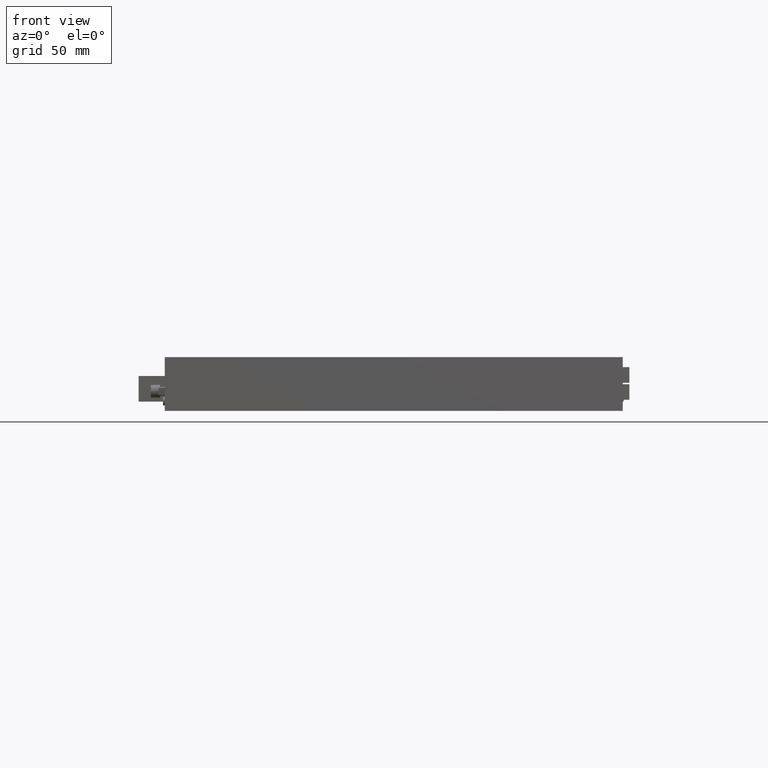
[diagram: clean part render]
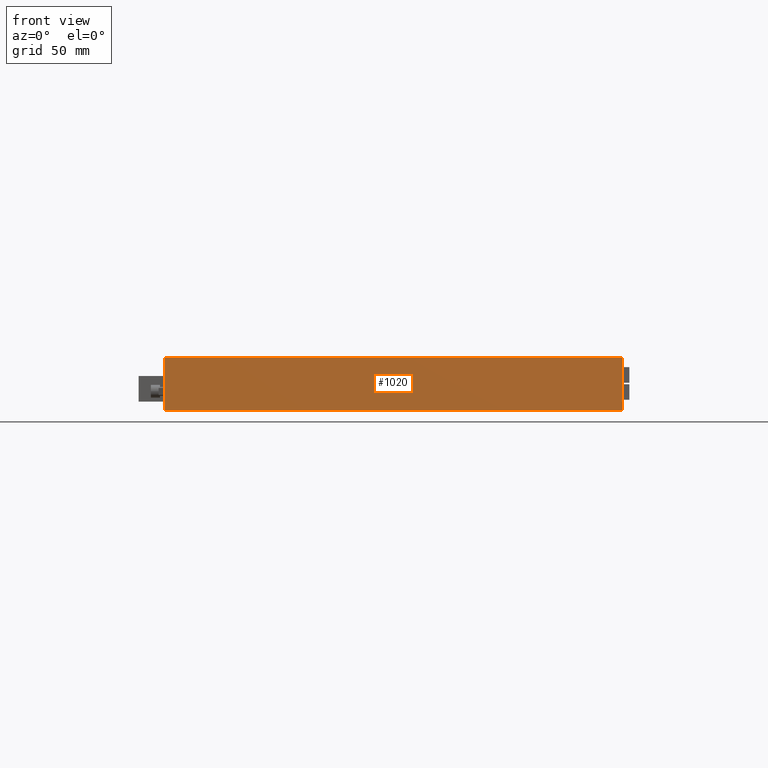
[diagram: same view with one face highlighted and labeled with its STEP entity id]
A machine part, front view. The second image highlights one B-rep face of the part: STEP entity #1020.
In plain terms, the highlighted planar face has unit normal (0, -1, 0).
Its self-contained STEP definition (entity closure, byte-faithful):
#120=CARTESIAN_POINT('',(-220.693986957435,4.40363222366137,-1.9725E-11)
);
#130=VERTEX_POINT('',#120);
#280=CARTESIAN_POINT('',(-220.693986957435,4.40363222366137,
374.99999999998));
#290=VERTEX_POINT('',#280);
#320=CARTESIAN_POINT('',(-220.693986957435,4.40363222366137,0.));
#330=DIRECTION('',(0.,0.,-1.));
#340=VECTOR('',#330,1.);
#350=LINE('',#320,#340);
#360=EDGE_CURVE('',#290,#130,#350,.T.);
#460=CARTESIAN_POINT('',(-220.693986957435,-39.5963677763395,0.));
#470=DIRECTION('',(0.,0.,1.));
#480=VECTOR('',#470,1.);
#490=LINE('',#460,#480);
#500=CARTESIAN_POINT('',(-220.693986957435,-39.5963677763395,-1.9725E-11
));
#510=VERTEX_POINT('',#500);
#520=CARTESIAN_POINT('',(-220.693986957435,-39.5963677763395,
374.99999999998));
#530=VERTEX_POINT('',#520);
#540=EDGE_CURVE('',#510,#530,#490,.T.);
#810=CARTESIAN_POINT('',(-220.693986957435,-40.6964339263395,
384.37506614998));
#820=DIRECTION('',(-1.,0.,0.));
#830=DIRECTION('',(0.,1.,0.));
#840=AXIS2_PLACEMENT_3D('',#810,#820,#830);
#850=PLANE('',#840);
#860=CARTESIAN_POINT('',(-220.693986957435,0.,374.99999999998));
#870=DIRECTION('',(0.,-1.,0.));
#880=VECTOR('',#870,1.);
#890=LINE('',#860,#880);
#900=EDGE_CURVE('',#290,#530,#890,.T.);
#910=ORIENTED_EDGE('',*,*,#900,.F.);
#920=ORIENTED_EDGE('',*,*,#540,.T.);
#930=CARTESIAN_POINT('',(-220.693986957435,0.,-1.97246663447004E-11));
#940=DIRECTION('',(0.,-1.,0.));
#950=VECTOR('',#940,1.);
#960=LINE('',#930,#950);
#970=EDGE_CURVE('',#130,#510,#960,.T.);
#980=ORIENTED_EDGE('',*,*,#970,.T.);
#990=ORIENTED_EDGE('',*,*,#360,.T.);
#1000=EDGE_LOOP('',(#990,#980,#920,#910));
#1010=FACE_OUTER_BOUND('',#1000,.T.);
#1020=ADVANCED_FACE('',(#1010),#850,.T.);